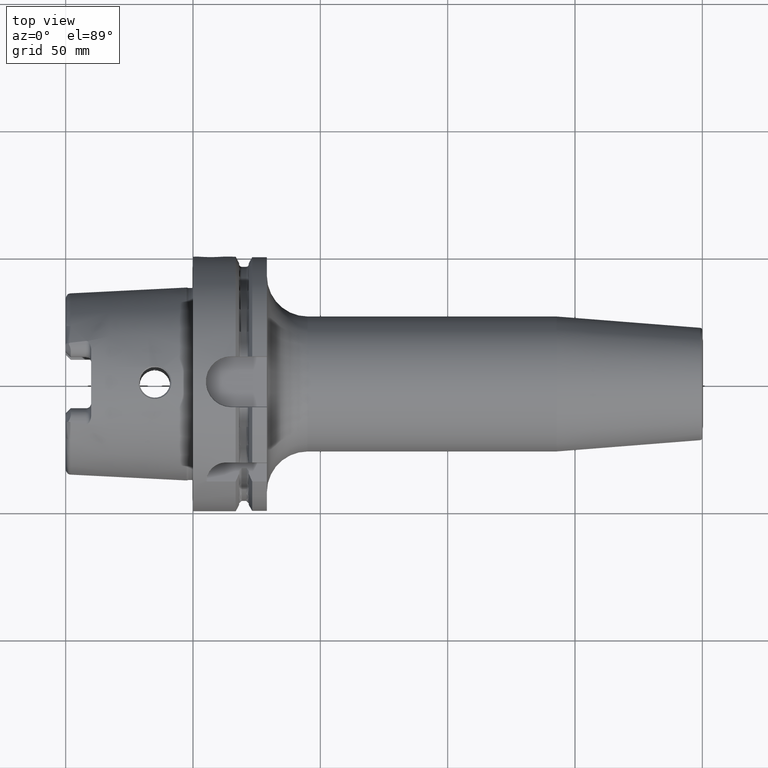
[diagram: clean part render]
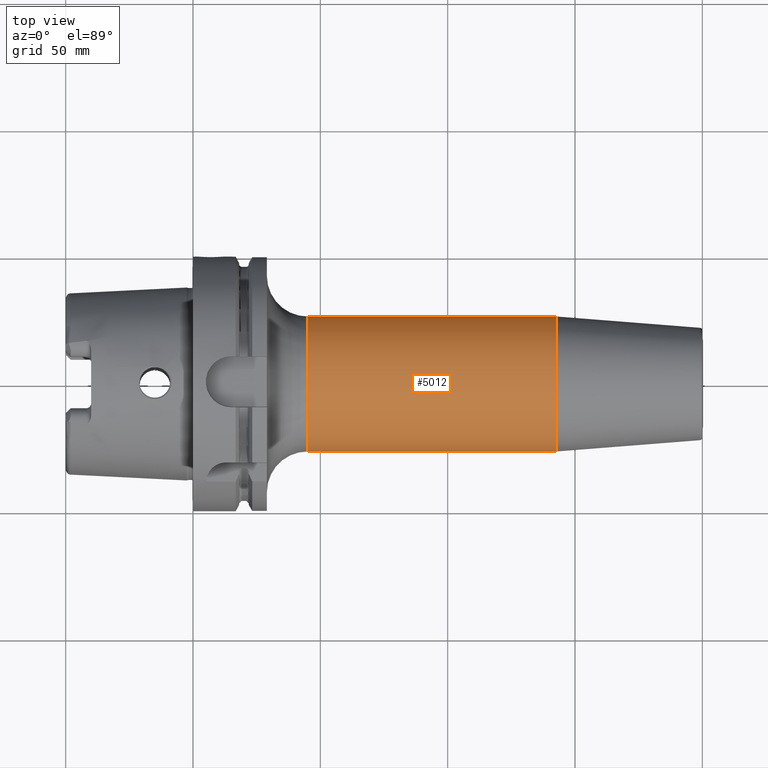
[diagram: same view with one face highlighted and labeled with its STEP entity id]
A machine part, top view. The second image highlights one B-rep face of the part: STEP entity #5012.
In plain terms, the highlighted cylindrical surface (partial cylindrical patch) has radius 26.5 mm, axis along (1, 0, 0).
Its self-contained STEP definition (entity closure, byte-faithful):
#1820=CARTESIAN_POINT('',(4.5E1,0.E0,0.E0));
#1821=DIRECTION('',(1.E0,0.E0,0.E0));
#1822=DIRECTION('',(0.E0,1.E0,0.E0));
#1823=AXIS2_PLACEMENT_3D('',#1820,#1821,#1822);
#1825=CARTESIAN_POINT('',(1.428220786872E2,0.E0,0.E0));
#1826=DIRECTION('',(1.E0,0.E0,0.E0));
#1827=DIRECTION('',(0.E0,1.E0,0.E0));
#1828=AXIS2_PLACEMENT_3D('',#1825,#1826,#1827);
#1835=DIRECTION('',(-1.E0,0.E0,0.E0));
#1836=VECTOR('',#1835,9.782207868721E1);
#1837=CARTESIAN_POINT('',(1.428220786872E2,-2.65E1,0.E0));
#1838=LINE('',#1837,#1836);
#1844=DIRECTION('',(-1.E0,0.E0,0.E0));
#1845=VECTOR('',#1844,9.782207868721E1);
#1846=CARTESIAN_POINT('',(1.428220786872E2,2.65E1,0.E0));
#1847=LINE('',#1846,#1845);
#3129=CARTESIAN_POINT('',(1.428220786872E2,2.65E1,0.E0));
#3130=CARTESIAN_POINT('',(1.428220786872E2,-2.65E1,0.E0));
#3131=VERTEX_POINT('',#3129);
#3132=VERTEX_POINT('',#3130);
#3141=CARTESIAN_POINT('',(4.5E1,-2.65E1,0.E0));
#3142=CARTESIAN_POINT('',(4.5E1,2.65E1,0.E0));
#3143=VERTEX_POINT('',#3141);
#3144=VERTEX_POINT('',#3142);
#4998=CARTESIAN_POINT('',(2.045E1,0.E0,0.E0));
#4999=DIRECTION('',(1.E0,0.E0,0.E0));
#5000=DIRECTION('',(0.E0,-1.E0,0.E0));
#5001=AXIS2_PLACEMENT_3D('',#4998,#4999,#5000);
#5002=CYLINDRICAL_SURFACE('',#5001,2.65E1);
#5003=ORIENTED_EDGE('',*,*,#4992,.F.);
#5005=ORIENTED_EDGE('',*,*,#5004,.F.);
#5007=ORIENTED_EDGE('',*,*,#5006,.T.);
#5009=ORIENTED_EDGE('',*,*,#5008,.T.);
#5010=EDGE_LOOP('',(#5003,#5005,#5007,#5009));
#5011=FACE_OUTER_BOUND('',#5010,.F.);
#5012=ADVANCED_FACE('',(#5011),#5002,.T.);
#1824=CIRCLE('',#1823,2.65E1);
#1829=CIRCLE('',#1828,2.65E1);
#4992=EDGE_CURVE('',#3144,#3143,#1824,.T.);
#5004=EDGE_CURVE('',#3131,#3144,#1847,.T.);
#5006=EDGE_CURVE('',#3131,#3132,#1829,.T.);
#5008=EDGE_CURVE('',#3132,#3143,#1838,.T.);